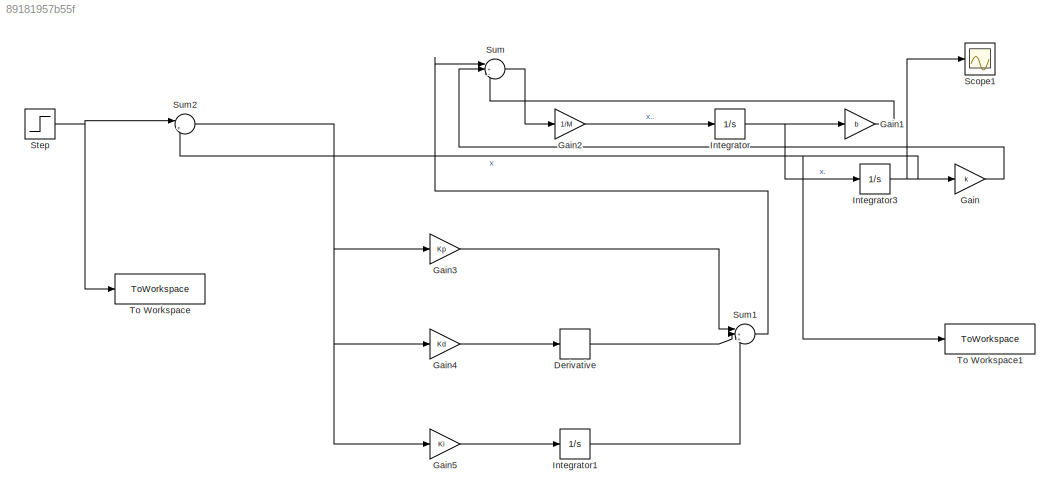
MODEL slx_89181957b55f
KIND model
CONFIG AbsTol = auto
CONFIG EnableMultiTasking = off
CONFIG FixedStep = auto
CONFIG MaxStep = 0.05
CONFIG MinStep = auto
CONFIG RelTol = 1e-3
CONFIG SampleTimeConstraint = Unconstrained
CONFIG SolverName = VariableStepAuto
CONFIG StartTime = 0.0
CONFIG StopTime = 7
BLOCK [Derivative] Derivative
BLOCK [Gain] Gain
  Gain = k
BLOCK [Gain] Gain1
  Gain = b
BLOCK [Gain] Gain2
  Gain = 1/M
BLOCK [Gain] Gain3
  Gain = Kp
BLOCK [Gain] Gain4
  Gain = Kd
BLOCK [Gain] Gain5
  Gain = Ki
BLOCK [Integrator] Integrator
BLOCK [Integrator] Integrator1
BLOCK [Integrator] Integrator3
BLOCK [Scope] Scope1
  Floating = off
  NumInputPorts = 1
  ScopeSpecificationString = Simulink.scopes.TimeScopeBlockCfg('CurrentConfiguration', extmgr.ConfigurationSet(extmgr.Configuration('Core','General UI',true),extmgr.Configuration('Core','Source UI',true),extmgr.Configuration('Sources','WiredSimulink',true,'DataLoggingVariableName','ScopeData1'),extmgr.Configuration('Visuals','Time Domain',true,'SerializedDisplays',{struct('MinYLimReal','-0.17935','MaxYLimReal','1.61415','YLab...<+1479ch>
BLOCK [Step] Step
  After = F
  SampleTime = 0
BLOCK [Sum] Sum
  Inputs = |+--
BLOCK [Sum] Sum1
  Inputs = |+++
BLOCK [Sum] Sum2
  Inputs = |+-
BLOCK [ToWorkspace] To Workspace
  FixptAsFi = on
  MaxDataPoints = inf
  SampleTime = -1
  SaveFormat = Timeseries
  VariableName = IN
BLOCK [ToWorkspace] To Workspace1
  FixptAsFi = on
  MaxDataPoints = inf
  SampleTime = -1
  SaveFormat = Timeseries
  VariableName = OUT
LINE Derivative:1 -> Sum1:2
LINE Gain1:1 -> Sum:3
LINE Gain2:1 -> Integrator:1
LINE Gain3:1 -> Sum1:1
LINE Gain4:1 -> Derivative:1
LINE Gain5:1 -> Integrator1:1
LINE Gain:1 -> Sum:2
LINE Integrator1:1 -> Sum1:3
NET Integrator3:1 -> Gain:1, Scope1:1, Sum2:2, To Workspace1:1
NET Integrator:1 -> Gain1:1, Integrator3:1
NET Step:1 -> Sum2:1, To Workspace:1
LINE Sum1:1 -> Sum:1
NET Sum2:1 -> Gain3:1, Gain4:1, Gain5:1
LINE Sum:1 -> Gain2:1
note: NET lines group one-source signal fan-out (src -> all destinations, sorted); 1:1 wires keep LINE
